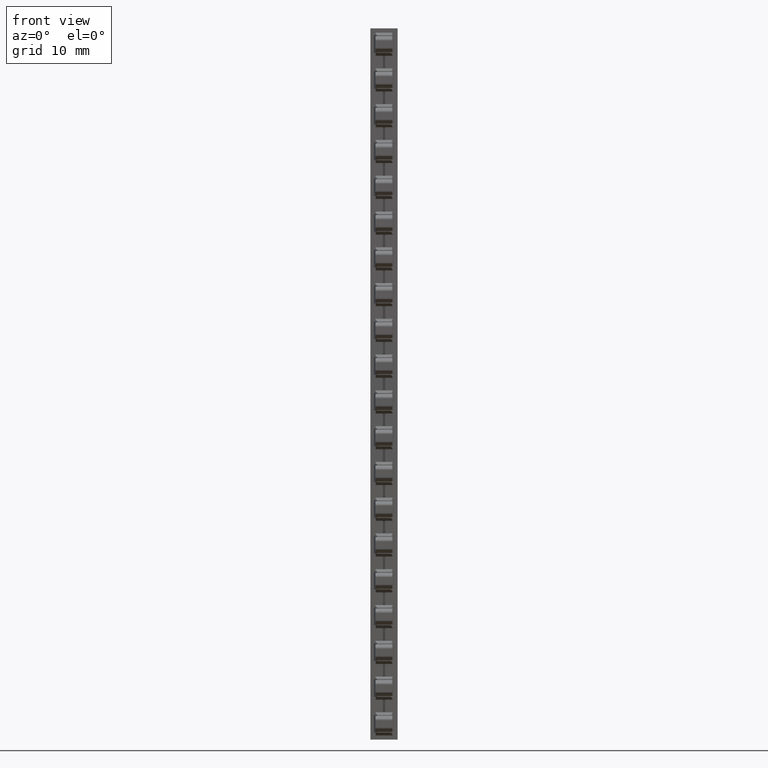
[diagram: clean part render]
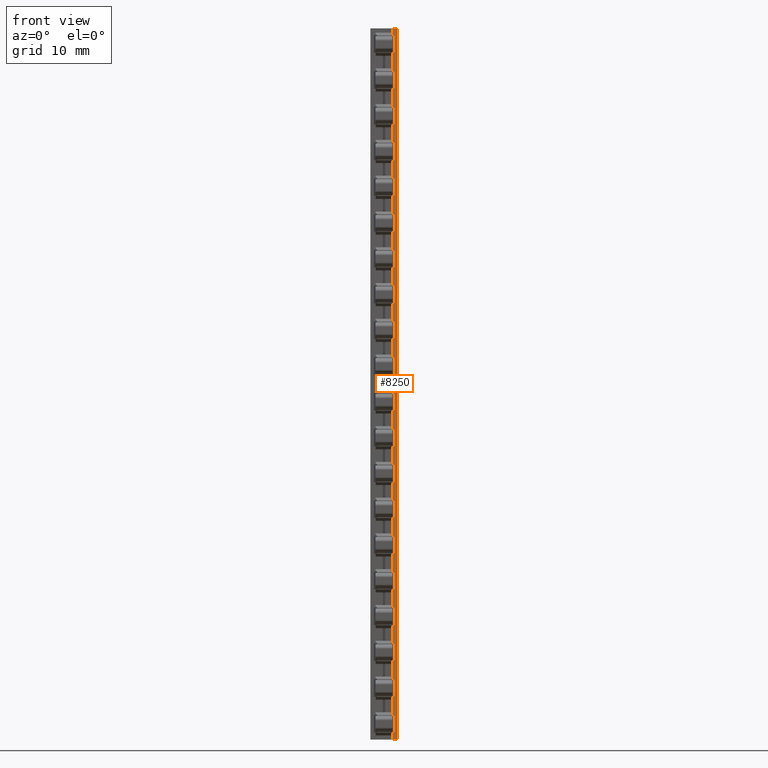
[diagram: same view with one face highlighted and labeled with its STEP entity id]
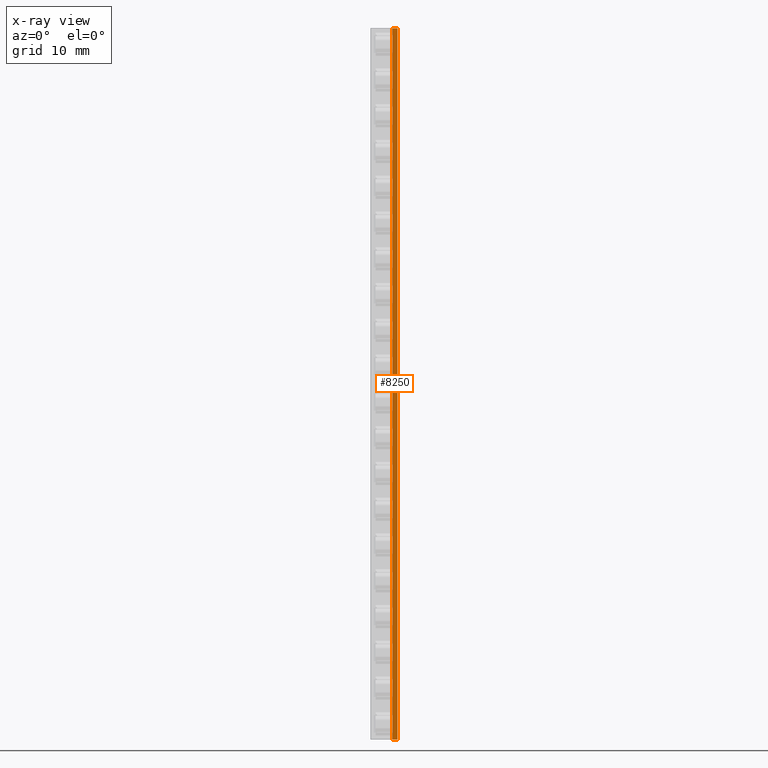
[diagram: x-ray of the same camera — body ghosted, the highlighted face saturated]
A machine part, front view. The second image highlights one B-rep face of the part: STEP entity #8250.
The next image is the same camera in x-ray: the body ghosted, the highlighted face saturated — about 0% of this face is hidden behind the body in this view.
In plain terms, the highlighted planar face has unit normal (0, 1, 0).
Its self-contained STEP definition (entity closure, byte-faithful):
#134 = VECTOR ( 'NONE', #11181, 1000.000000000000000 ) ;
#149 = VECTOR ( 'NONE', #11288, 1000.000000000000000 ) ;
#190 = VECTOR ( 'NONE', #11374, 1000.000000000000000 ) ;
#934 = ORIENTED_EDGE ( 'NONE', *, *, #17254, .F. ) ;
#937 = ORIENTED_EDGE ( 'NONE', *, *, #16807, .F. ) ;
#938 = ORIENTED_EDGE ( 'NONE', *, *, #17291, .F. ) ;
#959 = ORIENTED_EDGE ( 'NONE', *, *, #17314, .F. ) ;
#2749 = AXIS2_PLACEMENT_3D ( 'NONE', #20958, #20924, #20965 ) ;
#3713 = CARTESIAN_POINT ( 'NONE',  ( 1459.989907072214500, 988.5426795374905900, 13.05000000017584000 ) ) ;
#3806 = CARTESIAN_POINT ( 'NONE',  ( 1459.989907072214500, 988.5426795374916100, 114.4499999999748100 ) ) ;
#8250 = ADVANCED_FACE ( 'NONE', ( #20943 ), #20964, .F. ) ;
#8912 = CARTESIAN_POINT ( 'NONE',  ( 1459.239907072214000, 988.5426795374916100, 13.05000000017584000 ) ) ;
#8918 = CARTESIAN_POINT ( 'NONE',  ( 1459.239907072214000, 988.5426795374916100, 114.4499999999747900 ) ) ;
#9176 = EDGE_LOOP ( 'NONE', ( #959, #937, #938, #934 ) ) ;
#9677 = CARTESIAN_POINT ( 'NONE',  ( 1459.239907072214000, 988.5426795374916100, -30.13084736897824800 ) ) ;
#9685 = LINE ( 'NONE', #9677, #25153 ) ;
#9738 = DIRECTION ( 'NONE',  ( -1.715124499442844000E-015, 1.097884403469707200E-029, 1.000000000000000000 ) ) ;
#9827 = VERTEX_POINT ( 'NONE', #3713 ) ;
#9872 = VERTEX_POINT ( 'NONE', #3806 ) ;
#11181 = DIRECTION ( 'NONE',  ( 1.715124499442844000E-015, -1.097884403469707200E-029, -1.000000000000000000 ) ) ;
#11224 = CARTESIAN_POINT ( 'NONE',  ( 1459.989907072214500, 988.5426795374893300, -30.13084736897824800 ) ) ;
#11250 = LINE ( 'NONE', #11224, #134 ) ;
#11288 = DIRECTION ( 'NONE',  ( -1.000000000000000000, -0.0000000000000000000, 0.0000000000000000000 ) ) ;
#11323 = LINE ( 'NONE', #11334, #149 ) ;
#11334 = CARTESIAN_POINT ( 'NONE',  ( 1459.886317917991800, 988.5426795374916100, 13.05000000017584000 ) ) ;
#11363 = LINE ( 'NONE', #11367, #190 ) ;
#11367 = CARTESIAN_POINT ( 'NONE',  ( 1459.886317917991800, 988.5426795374916100, 114.4499999999748100 ) ) ;
#11374 = DIRECTION ( 'NONE',  ( 1.000000000000000000, 0.0000000000000000000, -0.0000000000000000000 ) ) ;
#13930 = VERTEX_POINT ( 'NONE', #8912 ) ;
#13959 = VERTEX_POINT ( 'NONE', #8918 ) ;
#16807 = EDGE_CURVE ( 'NONE', #13930, #13959, #9685, .T. ) ;
#17254 = EDGE_CURVE ( 'NONE', #9872, #9827, #11250, .T. ) ;
#17291 = EDGE_CURVE ( 'NONE', #9827, #13930, #11323, .T. ) ;
#17314 = EDGE_CURVE ( 'NONE', #13959, #9872, #11363, .T. ) ;
#20924 = DIRECTION ( 'NONE',  ( 0.0000000000000000000, 1.000000000000000000, 0.0000000000000000000 ) ) ;
#20943 = FACE_OUTER_BOUND ( 'NONE', #9176, .T. ) ;
#20958 = CARTESIAN_POINT ( 'NONE',  ( 1459.886317917991800, 988.5426795374916100, -17.91585598421690100 ) ) ;
#20964 = PLANE ( 'NONE',  #2749 ) ;
#20965 = DIRECTION ( 'NONE',  ( 0.0000000000000000000, -0.0000000000000000000, 1.000000000000000000 ) ) ;
#25153 = VECTOR ( 'NONE', #9738, 1000.000000000000000 ) ;